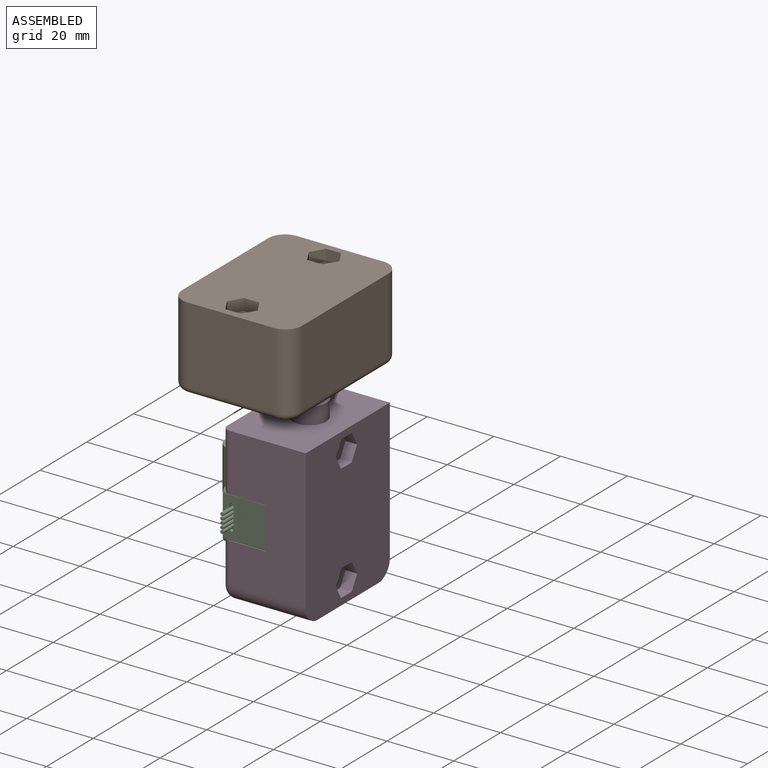
[diagram: assembled view]
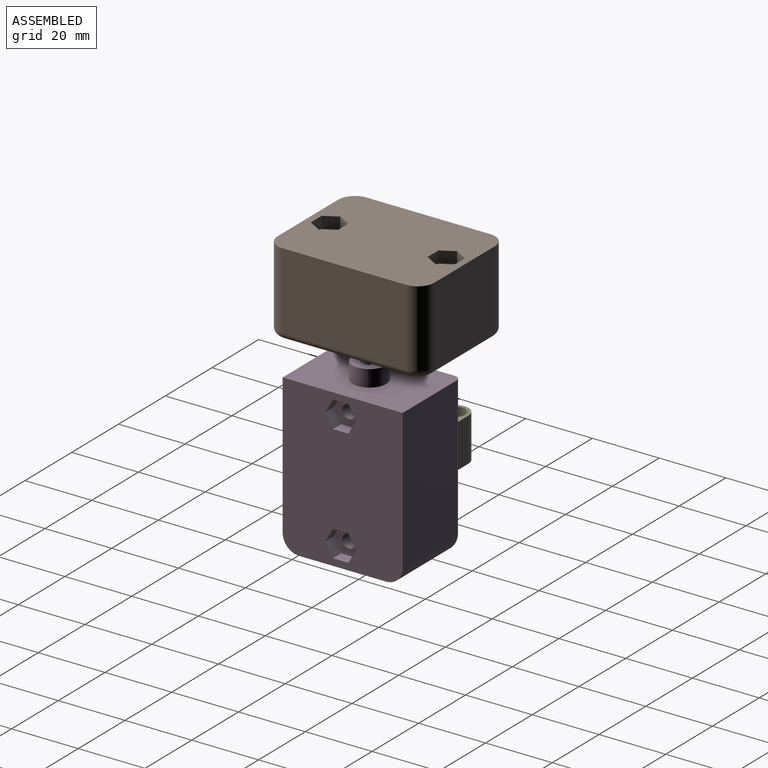
[diagram: assembled view, second angle]
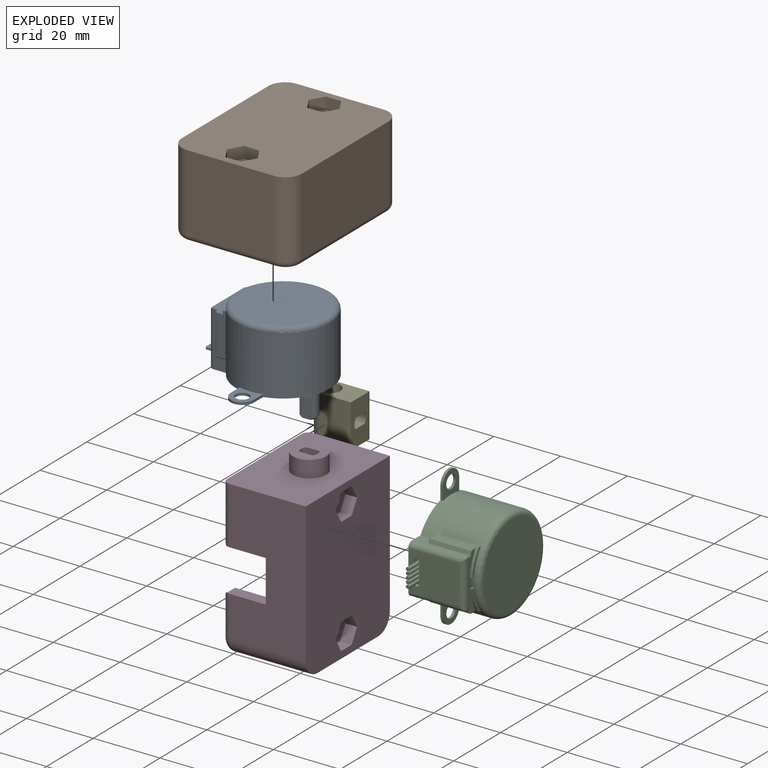
[diagram: exploded view]
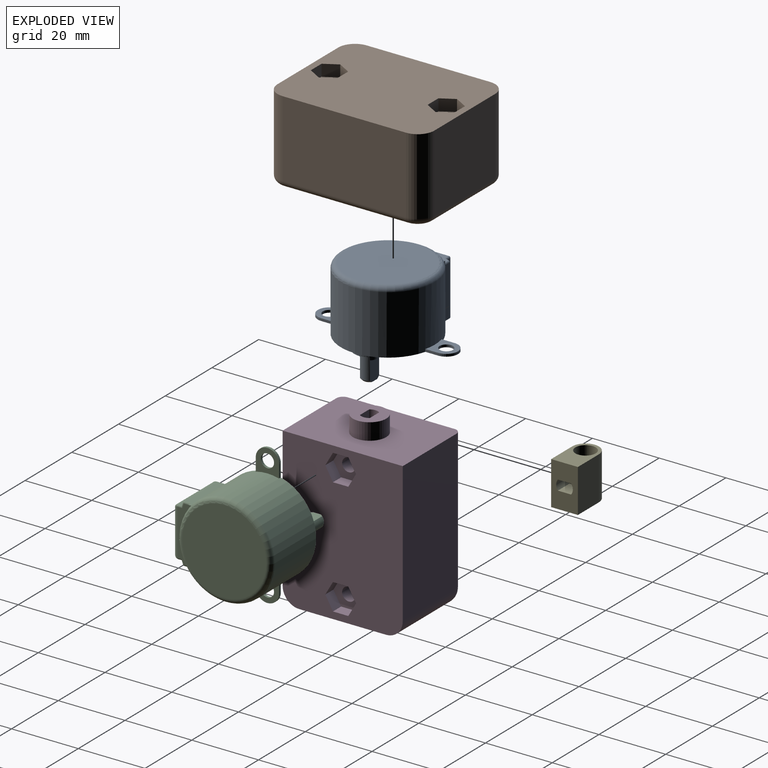
[diagram: exploded view, second angle]
ASSEMBLY  parts=5 mates=4
PART A: 77 faces, bbox 36.6x42.1x28.7 mm
  f0: cylinder r=0.5mm len=5mm, axis (-1,0,0), area 15.7mm2, adj f1,f70
  f1: plane 1x1mm, normal (1,0,0), area 0.8mm2, adj f0
  f2: cylinder r=0.5mm len=5mm, axis (-1,0,0), area 15.7mm2, adj f3,f70
  f3: plane 1x1mm, normal (1,0,0), area 0.8mm2, adj f2
  f4: cylinder r=2.45mm len=7.4mm, axis (0,0,-1), area 63.9mm2, adj f5,f6,f8,f11,f12,f13,f14
  f5: cone r=1.85mm half-angle=45deg, axis (0,0,-1), area 2.9mm2, adj f4,f7,f12,f14
  f6: cone r=1.85mm half-angle=45deg, axis (0,0,-1), area 2.9mm2, adj f4,f7,f12,f14
  f7: plane 3.7x3mm, normal (0,0,1), area 8.6mm2, adj f5,f6,f9,f12,f14
  f8: plane 9.1x9.1mm, normal (0,0,1), area 46.2mm2, adj f4,f10
  f9: cone r=0.6mm half-angle=45deg, axis (0,0,1), area 1.6mm2, adj f7
  f10: cylinder r=4.55mm len=9.1mm, axis (0,0,-1), area 38.6mm2, adj f8,f29
  f11: plane 3.87x0.95mm, normal (0,0,1), area 2.6mm2, adj f4,f12
  f12: plane 6.31x3.98mm, normal (0,-1,0), area 23.5mm2, adj f4,f5,f6,f7,f11
  f13: plane 3.87x0.95mm, normal (0,0,1), area 2.6mm2, adj f4,f14
  f14: plane 6.31x3.98mm, normal (0,1,0), area 23.5mm2, adj f4,f5,f6,f7,f13
  f15: plane 15.2x11.8mm, normal (1,0,0), area 169.8mm2, adj f29,f44,f45,f46,f66,f67,f68,f69
  f16: cylinder r=14.1mm len=28.2mm, axis (0,0,1), area 1244mm2, adj f17,f18,f19,f20,f21,f22,f23,f28
  f17: plane 16.5x3.36mm, normal (0,0,-1), area 25.3mm2, adj f16,f38,f39,f41,f42,f45,f52,f54
  f18: plane 16.28x3.78mm, normal (0,1,0), area 27.3mm2, adj f16,f29,f32,f33,f44,f48,f55
  f19: plane 3.84x0.75mm, normal (-1,0,0), area 2.9mm2, adj f16,f25,f28,f29
  f20: plane 3.84x0.75mm, normal (-1,0,0), area 2.9mm2, adj f16,f23,f24,f29
  f21: plane 3.84x0.75mm, normal (1,0,0), area 2.9mm2, adj f16,f25,f28,f29
  f22: plane 3.84x0.75mm, normal (1,0,0), area 2.9mm2, adj f16,f23,f24,f29
  f23: plane 7.34x7mm, normal (0,0,-1), area 31.5mm2, adj f16,f20,f22,f24,f27
  f24: cylinder r=3.5mm len=7mm, axis (0,0,1), area 8.2mm2, adj f20,f22,f23,f29
  f25: cylinder r=3.5mm len=7mm, axis (0,0,1), area 8.2mm2, adj f19,f21,f28,f29
  f26: cylinder r=2mm len=4mm, axis (0,0,1), area 9.4mm2, adj f28,f29
  f27: cylinder r=2mm len=4mm, axis (0,0,1), area 9.4mm2, adj f23,f29
  f28: plane 7.34x7mm, normal (0,0,-1), area 31.5mm2, adj f16,f19,f21,f25,f26
  f29: plane 42x31.3mm, normal (0,0,1), area 677.5mm2, adj f10,f15,f16,f18,f19,f20,f21,f22
  f30: plane 25.2x25.2mm, normal (0,0,-1), area 498.8mm2, adj f47
  f31: plane 16.28x3.78mm, normal (0,-1,0), area 27.3mm2, adj f16,f29,f35,f36,f46,f58,f64
  f32: plane 2.73x0.85mm, normal (0,0,1), area 1.9mm2, adj f16,f18,f48,f49
  f33: plane 11.6x1.02mm, normal (0.94,0.35,0), area 12.7mm2, adj f18,f48,f51,f54
  f34: plane 12.85x2.8mm, normal (0,1,0), area 33.6mm2, adj f16,f39,f40,f49,f51,f52
  f35: plane 2.73x0.85mm, normal (0,0,1), area 1.9mm2, adj f16,f31,f57,f58
  f36: plane 11.6x1.02mm, normal (0.94,-0.35,0), area 12.7mm2, adj f31,f58,f61,f63
  f37: plane 12.85x2.8mm, normal (0,-1,0), area 33.6mm2, adj f16,f41,f43,f57,f60,f61
  f38: plane 0.75x0.75mm, normal (0,-1,0), area 0.6mm2, adj f16,f17,f39,f40
  f39: cylinder r=14.85mm len=7.25mm, axis (0,0,1), area 6mm2, adj f17,f34,f38,f40,f52
  f40: plane 7.25x3.71mm, normal (0,0,-1), area 5.9mm2, adj f16,f34,f38,f39
  f41: cylinder r=14.85mm len=7.25mm, axis (0,0,1), area 6mm2, adj f17,f37,f42,f43,f60
  f42: plane 0.75x0.75mm, normal (0,1,0), area 0.6mm2, adj f16,f17,f41,f43
  f43: plane 7.25x3.71mm, normal (0,0,-1), area 5.9mm2, adj f16,f37,f41,f42
  f44: cylinder r=1.5mm len=16.2mm, axis (0,0,-1), area 37.3mm2, adj f15,f18,f29,f56
  f45: cylinder r=1.5mm len=13.8mm, axis (0,-1,0), area 30.8mm2, adj f15,f17,f56,f65
  f46: cylinder r=1.5mm len=16.2mm, axis (0,0,1), area 37.3mm2, adj f15,f29,f31,f65
  f47: torus R=12.6mm, axis (0,0,-1), area 200.7mm2, adj f16,f30
  f48: cylinder r=0.5mm len=1.2mm, axis (-0.35,0.94,0), area 0.8mm2, adj f18,f32,f33,f50
  f49: cylinder r=0.5mm len=2.8mm, axis (-1,0,0), area 2mm2, adj f16,f32,f34,f50
  f50: sphere r=0.5mm, area 0.3mm2, adj f48,f49,f51
  f51: cylinder r=0.5mm len=11.6mm, axis (0,0,-1), area 7.1mm2, adj f33,f34,f50,f53
  f52: cylinder r=0.5mm len=1.86mm, axis (-1,0,0), area 1.3mm2, adj f17,f34,f39,f53
  f53: sphere r=0.5mm, area 0.3mm2, adj f51,f52,f54
  f54: cylinder r=0.5mm len=1.52mm, axis (-0.35,0.94,0), area 1mm2, adj f17,f33,f53,f55
  f55: cylinder r=0.5mm len=1.35mm, axis (1,0,0), area 0.9mm2, adj f17,f18,f54,f56
  f56: bspline ~1.76x1.5mm, area 1.3mm2, adj f44,f45,f55
  f57: cylinder r=0.5mm len=2.8mm, axis (1,0,0), area 2mm2, adj f16,f35,f37,f59
  f58: cylinder r=0.5mm len=1.2mm, axis (0.35,0.94,0), area 0.8mm2, adj f31,f35,f36,f59
  f59: sphere r=0.5mm, area 0.3mm2, adj f57,f58,f61
  f60: cylinder r=0.5mm len=1.86mm, axis (1,0,0), area 1.3mm2, adj f17,f37,f41,f62
  f61: cylinder r=0.5mm len=11.6mm, axis (0,0,-1), area 7.1mm2, adj f36,f37,f59,f62
  f62: sphere r=0.5mm, area 0.3mm2, adj f60,f61,f63
  f63: cylinder r=0.5mm len=1.52mm, axis (0.35,0.94,0), area 1mm2, adj f17,f36,f62,f64
  f64: cylinder r=0.5mm len=1.35mm, axis (-1,0,0), area 0.9mm2, adj f17,f31,f63,f65
  f65: bspline ~1.76x1.5mm, area 1.3mm2, adj f45,f46,f64
  f66: plane 6.3x1mm, normal (0,0,1), area 6.3mm2, adj f15,f67,f69,f70
  f67: cylinder r=0.65mm len=1.3mm, axis (1,0,0), area 2mm2, adj f15,f66,f68,f70
  f68: plane 6.3x1mm, normal (0,0,-1), area 6.3mm2, adj f15,f67,f69,f70
  f69: cylinder r=0.65mm len=1.3mm, axis (1,0,0), area 2mm2, adj f15,f66,f68,f70
  f70: plane 7.6x1.3mm, normal (1,0,0), area 5.6mm2, adj f0,f2,f66,f67,f68,f69,f71,f73
  f71: cylinder r=0.5mm len=5mm, axis (-1,0,0), area 15.7mm2, adj f70,f72
  f72: plane 1x1mm, normal (1,0,0), area 0.8mm2, adj f71
  f73: cylinder r=0.5mm len=5mm, axis (-1,0,0), area 15.7mm2, adj f70,f74
  f74: plane 1x1mm, normal (1,0,0), area 0.8mm2, adj f73
  f75: cylinder r=0.5mm len=5mm, axis (-1,0,0), area 15.7mm2, adj f70,f76
  f76: plane 1x1mm, normal (1,0,0), area 0.8mm2, adj f75
PART B: 59 faces, bbox 47.8x36.8x25 mm
  f0: cylinder r=2mm len=12.24mm, axis (1,0,0), area 37.2mm2, adj f7,f8,f12,f20,f39,f56
  f1: plane 47x35.99mm, normal (0,0,1), area 1560mm2, adj f4,f5,f6,f7,f30,f31,f32,f33
  f2: cylinder r=2mm len=20.7mm, axis (0,0,-1), area 260.1mm2, adj f24,f55
  f3: cylinder r=2mm len=20.7mm, axis (0,0,-1), area 260.1mm2, adj f23,f48
  f4: plane 25.99x23mm, normal (1,0,0), area 597.7mm2, adj f1,f30,f33,f37
  f5: plane 37x23mm, normal (0,1,0), area 851mm2, adj f1,f30,f31,f34
  f6: plane 25.99x23mm, normal (-1,0,0), area 597.7mm2, adj f1,f31,f32,f38
  f7: plane 37x23mm, normal (0,-1,0), area 712.4mm2, adj f0,f1,f32,f33,f41,f56,f57,f58
  f8: plane 43x31.99mm, normal (0,0,-1), area 632.6mm2, adj f0,f16,f18,f20,f22,f25,f26,f27
  f9: sphere r=1mm, area 1.6mm2, adj f10,f14,f15
  f10: cylinder r=1mm len=12.9mm, axis (0,0,1), area 19.7mm2, adj f9,f16,f41,f57
  f11: sphere r=1mm, area 1.6mm2, adj f12,f13,f14
  f12: cylinder r=1mm len=12.9mm, axis (0,0,1), area 19.7mm2, adj f0,f11,f20,f56
  f13: cylinder r=1mm len=4.05mm, axis (0,-1,0), area 5.9mm2, adj f11,f18,f20,f21
  f14: cylinder r=1mm len=12.6mm, axis (-1,0,0), area 19.8mm2, adj f9,f11,f21,f58
  f15: cylinder r=1mm len=4.05mm, axis (0,1,0), area 5.9mm2, adj f9,f16,f18,f21
  f16: plane 13x4.05mm, normal (1,0,0), area 52.7mm2, adj f8,f10,f15,f18,f41
  f17: torus R=13mm, axis (0,0,-1), area 134.6mm2, adj f18,f19
  f18: cylinder r=14mm len=28mm, axis (0,0,1), area 1358.2mm2, adj f8,f13,f15,f16,f17,f20,f21,f22
  f19: plane 26x26mm, normal (0,0,-1), area 530.9mm2, adj f17
  f20: plane 13x4.05mm, normal (-1,0,0), area 52.7mm2, adj f0,f8,f12,f13,f18
  f21: plane 12.6x3.5mm, normal (0,0,-1), area 31.3mm2, adj f13,f14,f15,f18
  f22: plane 3.94x0.8mm, normal (0,1,0), area 3.2mm2, adj f8,f18,f23,f27
  f23: plane 7.44x7mm, normal (0,0,-1), area 32.2mm2, adj f3,f18,f22,f25,f27
  f24: plane 7.44x7mm, normal (0,0,-1), area 32.2mm2, adj f2,f18,f26,f28,f29
  f25: plane 3.94x0.8mm, normal (0,-1,0), area 3.2mm2, adj f8,f18,f23,f27
  f26: plane 3.94x0.8mm, normal (0,-1,0), area 3.2mm2, adj f8,f18,f24,f29
  f27: cylinder r=3.5mm len=7mm, axis (0,0,1), area 8.8mm2, adj f8,f22,f23,f25
  f28: plane 3.94x0.8mm, normal (0,1,0), area 3.2mm2, adj f8,f18,f24,f29
  f29: cylinder r=3.5mm len=7mm, axis (0,0,1), area 8.8mm2, adj f8,f24,f26,f28
  f30: cylinder r=5mm len=23mm, axis (0,0,1), area 180.6mm2, adj f1,f4,f5,f35
  f31: cylinder r=5mm len=23mm, axis (0,0,-1), area 180.6mm2, adj f1,f5,f6,f36
  f32: cylinder r=5mm len=23mm, axis (0,0,1), area 180.6mm2, adj f1,f6,f7,f40
  f33: cylinder r=5mm len=23mm, axis (0,0,-1), area 180.6mm2, adj f1,f4,f7,f39
  f34: cylinder r=2mm len=37mm, axis (-1,0,0), area 116.2mm2, adj f5,f8,f35,f36
  f35: torus R=3mm, axis (0,0,1), area 21.1mm2, adj f8,f30,f34,f37
  f36: torus R=3mm, axis (0,0,1), area 21.1mm2, adj f8,f31,f34,f38
  f37: cylinder r=2mm len=25.99mm, axis (0,1,0), area 81.6mm2, adj f4,f8,f35,f39
  f38: cylinder r=2mm len=25.99mm, axis (0,-1,0), area 81.6mm2, adj f6,f8,f36,f40
  f39: torus R=3mm, axis (0,0,1), area 21.1mm2, adj f0,f8,f33,f37
  f40: torus R=3mm, axis (0,0,1), area 21.1mm2, adj f8,f32,f38,f41
  f41: cylinder r=2mm len=12.16mm, axis (1,0,0), area 36.9mm2, adj f7,f8,f10,f16,f40,f57
  f42: plane 3.98x3.5mm, normal (-0.5,-0.87,0), area 16.1mm2, adj f1,f43,f47,f48
  f43: plane 3.98x3.5mm, normal (0.5,-0.87,0), area 16.1mm2, adj f1,f42,f44,f48
  f44: plane 4.6x3.5mm, normal (1,0,0), area 16.1mm2, adj f1,f43,f45,f48
  f45: plane 3.98x3.5mm, normal (0.5,0.87,0), area 16.1mm2, adj f1,f44,f46,f48
  f46: plane 3.98x3.5mm, normal (-0.5,0.87,0), area 16.1mm2, adj f1,f45,f47,f48
  f47: plane 4.6x3.5mm, normal (-1,0,0), area 16.1mm2, adj f1,f42,f46,f48
  f48: plane 9.2x7.97mm, normal (0,0,1), area 42.4mm2, adj f3,f42,f43,f44,f45,f46,f47
  f49: plane 3.98x3.5mm, normal (-0.5,-0.87,0), area 16.1mm2, adj f1,f50,f54,f55
  f50: plane 3.98x3.5mm, normal (0.5,-0.87,0), area 16.1mm2, adj f1,f49,f51,f55
  f51: plane 4.6x3.5mm, normal (1,0,0), area 16.1mm2, adj f1,f50,f52,f55
  f52: plane 3.98x3.5mm, normal (0.5,0.87,0), area 16.1mm2, adj f1,f51,f53,f55
  f53: plane 3.98x3.5mm, normal (-0.5,0.87,0), area 16.1mm2, adj f1,f52,f54,f55
  f54: plane 4.6x3.5mm, normal (-1,0,0), area 16.1mm2, adj f1,f49,f53,f55
  f55: plane 9.2x7.97mm, normal (0,0,1), area 42.4mm2, adj f2,f49,f50,f51,f52,f53,f54
  f56: plane 12.17x0.38mm, normal (-1,0,0), area 4.5mm2, adj f0,f7,f12,f58
  f57: plane 12.17x0.38mm, normal (1,0,0), area 4.5mm2, adj f7,f10,f41,f58
  f58: plane 12.6x0.38mm, normal (0,0,-1), area 4.8mm2, adj f7,f14,f56,f57
PART C: same geometry as A
PART D: 61 faces, bbox 52.4x36.8x25 mm
  f0: cylinder r=2mm len=12.24mm, axis (1,0,0), area 37.2mm2, adj f7,f8,f12,f20,f35,f51
  f1: plane 47x35.99mm, normal (0,0,1), area 1570.8mm2, adj f4,f5,f6,f7,f30,f31,f37,f38
  f2: cylinder r=2mm len=20.7mm, axis (0,0,-1), area 260.1mm2, adj f24,f50
  f3: cylinder r=2mm len=20.7mm, axis (0,0,-1), area 260.1mm2, adj f23,f43
  f4: plane 25.99x23mm, normal (1,0,0), area 597.7mm2, adj f1,f30,f31,f34
  f5: plane 42x23mm, normal (0,1,0), area 966mm2, adj f1,f6,f30,f32
  f6: plane 35.99x25mm, normal (-1,0,0), area 819.4mm2, adj f1,f5,f7,f8,f32,f36,f58
  f7: plane 42x23mm, normal (0,-1,0), area 827.4mm2, adj f0,f1,f6,f31,f36,f51,f52,f53
  f8: plane 45x31.99mm, normal (0,0,-1), area 700.5mm2, adj f0,f6,f16,f18,f20,f22,f25,f26
  f9: sphere r=1mm, area 1.6mm2, adj f10,f14,f15
  f10: cylinder r=1mm len=12.9mm, axis (0,0,1), area 19.7mm2, adj f9,f16,f36,f52
  f11: sphere r=1mm, area 1.6mm2, adj f12,f13,f14
  f12: cylinder r=1mm len=12.9mm, axis (0,0,1), area 19.7mm2, adj f0,f11,f20,f51
  f13: cylinder r=1mm len=4.05mm, axis (0,-1,0), area 5.9mm2, adj f11,f18,f20,f21
  f14: cylinder r=1mm len=12.6mm, axis (-1,0,0), area 19.8mm2, adj f9,f11,f21,f53
  f15: cylinder r=1mm len=4.05mm, axis (0,1,0), area 5.9mm2, adj f9,f16,f18,f21
  f16: plane 13x4.05mm, normal (1,0,0), area 52.7mm2, adj f8,f10,f15,f18,f36
  f17: torus R=13mm, axis (0,0,-1), area 134.6mm2, adj f18,f19
  f18: cylinder r=14mm len=28mm, axis (0,0,1), area 1358.2mm2, adj f8,f13,f15,f16,f17,f20,f21,f22
  f19: plane 26x26mm, normal (0,0,-1), area 530.9mm2, adj f17
  f20: plane 13x4.05mm, normal (-1,0,0), area 52.7mm2, adj f0,f8,f12,f13,f18
  f21: plane 12.6x3.5mm, normal (0,0,-1), area 31.3mm2, adj f13,f14,f15,f18
  f22: plane 3.94x0.8mm, normal (0,1,0), area 3.2mm2, adj f8,f18,f23,f27
  f23: plane 7.44x7mm, normal (0,0,-1), area 32.2mm2, adj f3,f18,f22,f25,f27
  f24: plane 7.44x7mm, normal (0,0,-1), area 32.2mm2, adj f2,f18,f26,f28,f29
  f25: plane 3.94x0.8mm, normal (0,-1,0), area 3.2mm2, adj f8,f18,f23,f27
  f26: plane 3.94x0.8mm, normal (0,-1,0), area 3.2mm2, adj f8,f18,f24,f29
  f27: cylinder r=3.5mm len=7mm, axis (0,0,1), area 8.8mm2, adj f8,f22,f23,f25
  f28: plane 3.94x0.8mm, normal (0,1,0), area 3.2mm2, adj f8,f18,f24,f29
  f29: cylinder r=3.5mm len=7mm, axis (0,0,1), area 8.8mm2, adj f8,f24,f26,f28
  f30: cylinder r=5mm len=23mm, axis (0,0,1), area 180.6mm2, adj f1,f4,f5,f33
  f31: cylinder r=5mm len=23mm, axis (0,0,-1), area 180.6mm2, adj f1,f4,f7,f35
  f32: cylinder r=2mm len=42mm, axis (-1,0,0), area 131.9mm2, adj f5,f6,f8,f33
  f33: torus R=3mm, axis (0,0,1), area 21.1mm2, adj f8,f30,f32,f34
  f34: cylinder r=2mm len=25.99mm, axis (0,1,0), area 81.6mm2, adj f4,f8,f33,f35
  f35: torus R=3mm, axis (0,0,1), area 21.1mm2, adj f0,f8,f31,f34
  f36: cylinder r=2mm len=17.16mm, axis (1,0,0), area 52.7mm2, adj f6,f7,f8,f10,f16,f52
  f37: plane 3.98x3.5mm, normal (-0.5,-0.87,0), area 16.1mm2, adj f1,f38,f42,f43
  f38: plane 3.98x3.5mm, normal (0.5,-0.87,0), area 16.1mm2, adj f1,f37,f39,f43
  f39: plane 4.6x3.5mm, normal (1,0,0), area 16.1mm2, adj f1,f38,f40,f43
  f40: plane 3.98x3.5mm, normal (0.5,0.87,0), area 16.1mm2, adj f1,f39,f41,f43
  f41: plane 3.98x3.5mm, normal (-0.5,0.87,0), area 16.1mm2, adj f1,f40,f42,f43
  f42: plane 4.6x3.5mm, normal (-1,0,0), area 16.1mm2, adj f1,f37,f41,f43
  f43: plane 9.2x7.97mm, normal (0,0,1), area 42.4mm2, adj f3,f37,f38,f39,f40,f41,f42
  f44: plane 3.98x3.5mm, normal (-0.5,-0.87,0), area 16.1mm2, adj f1,f45,f49,f50
  f45: plane 3.98x3.5mm, normal (0.5,-0.87,0), area 16.1mm2, adj f1,f44,f46,f50
  f46: plane 4.6x3.5mm, normal (1,0,0), area 16.1mm2, adj f1,f45,f47,f50
  f47: plane 3.98x3.5mm, normal (0.5,0.87,0), area 16.1mm2, adj f1,f46,f48,f50
  f48: plane 3.98x3.5mm, normal (-0.5,0.87,0), area 16.1mm2, adj f1,f47,f49,f50
  f49: plane 4.6x3.5mm, normal (-1,0,0), area 16.1mm2, adj f1,f44,f48,f50
  f50: plane 9.2x7.97mm, normal (0,0,1), area 42.4mm2, adj f2,f44,f45,f46,f47,f48,f49
  f51: plane 12.17x0.38mm, normal (-1,0,0), area 4.5mm2, adj f0,f7,f12,f53
  f52: plane 12.17x0.38mm, normal (1,0,0), area 4.5mm2, adj f7,f10,f36,f53
  f53: plane 12.6x0.38mm, normal (0,0,-1), area 4.8mm2, adj f7,f14,f51,f52
  f54: plane 5x4mm, normal (0,1,0), area 20mm2, adj f55,f57,f59,f60
  f55: cylinder r=2.5mm len=5mm, axis (1,0,0), area 16.1mm2, adj f54,f56,f59,f60
  f56: plane 5x4mm, normal (0,-1,0), area 20mm2, adj f55,f57,f59,f60
  f57: cylinder r=2.5mm len=5mm, axis (1,0,0), area 16.1mm2, adj f54,f56,f59,f60
  f58: cylinder r=5mm len=10mm, axis (1,0,0), area 157.1mm2, adj f6,f59
  f59: plane 10x10mm, normal (-1,0,0), area 64.5mm2, adj f54,f55,f56,f57,f58
  f60: plane 5x3mm, normal (-1,0,0), area 14mm2, adj f54,f55,f56,f57
PART E: 14 faces, bbox 8x13x13 mm
  f0: plane 13x8mm, normal (0,1,0), area 90mm2, adj f2,f3,f5,f6,f9,f10,f11,f12
  f1: cylinder r=4mm len=13mm, axis (0,0,-1), area 163.4mm2, adj f2,f3,f5,f6
  f2: plane 13x9mm, normal (1,0,0), area 117mm2, adj f0,f1,f5,f6
  f3: plane 13x9mm, normal (-1,0,0), area 117mm2, adj f0,f1,f5,f6
  f4: cylinder r=3.05mm len=12mm, axis (0,0,-1), area 230mm2, adj f5,f8
  f5: plane 13x8mm, normal (0,0,1), area 67.9mm2, adj f0,f1,f2,f3,f4
  f6: plane 13x8mm, normal (0,0,-1), area 81.2mm2, adj f0,f1,f2,f3,f7
  f7: cylinder r=2.25mm len=4.5mm, axis (0,0,-1), area 14.1mm2, adj f6,f8
  f8: plane 6.1x6.1mm, normal (0,0,1), area 13.3mm2, adj f4,f7
  f9: plane 5x4mm, normal (0,0,-1), area 20mm2, adj f0,f10,f12,f13
  f10: cylinder r=2.5mm len=5mm, axis (0,1,0), area 16.1mm2, adj f0,f9,f11,f13
  f11: plane 5x4mm, normal (0,0,1), area 20mm2, adj f0,f10,f12,f13
  f12: cylinder r=2.5mm len=5mm, axis (0,1,0), area 16.1mm2, adj f0,f9,f11,f13
  f13: plane 5x3mm, normal (0,1,0), area 14mm2, adj f9,f10,f11,f12
PLACE A rot(axis=(0,-1,0),180deg) t=(-6.25,12.89,-32.58)mm
PLACE B rot(axis=(0,0,-1),90deg) t=(-14.1,12.89,-32.38)mm
PLACE C rot(axis=(0.58,-0.58,-0.58),120deg) t=(-19.76,20.12,-65.39)mm
PLACE D rot(axis=(0,1,0),90deg) t=(-19.75,12.27,-65.39)mm
PLACE E rot(axis=(0,0,-1),90deg) t=(-32.51,20.12,-71.89)mm
MATE revolute D.f55 <-> A.f4  axis (0,0,1) through (-6.25,12.89,-41.93)mm
MATE slider C.f16 <-> D.f17  axis (1,0,0) through (-0.56,12.27,-65.39)mm
MATE revolute E.f12 <-> C.f4  axis (1,0,0) through (-28.51,20.12,-65.39)mm
MATE fastened A.f16 <-> B.f17  axis (0,0,1) through (-14.1,12.89,-13.38)mm
